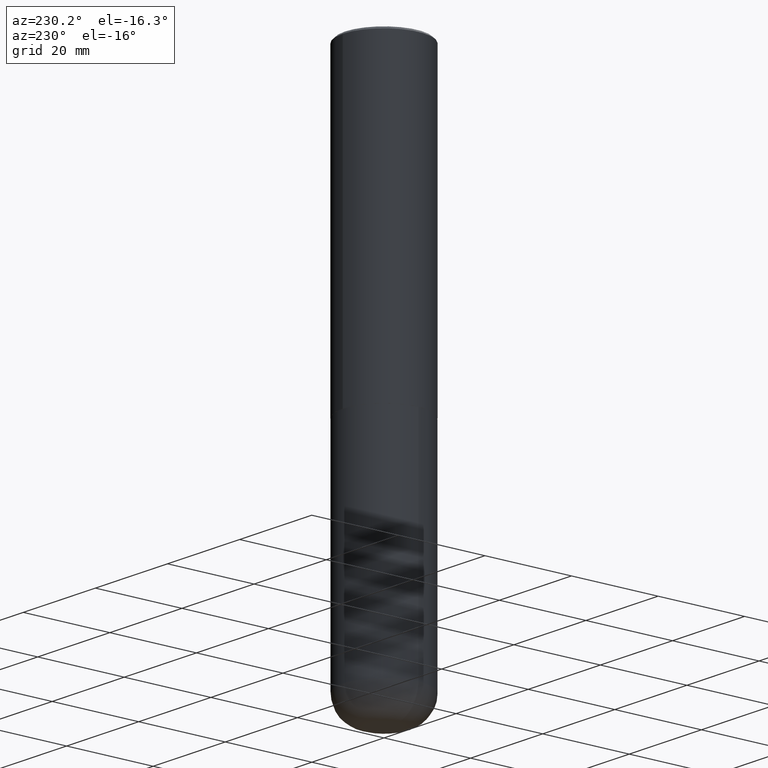
[diagram: clean part render]
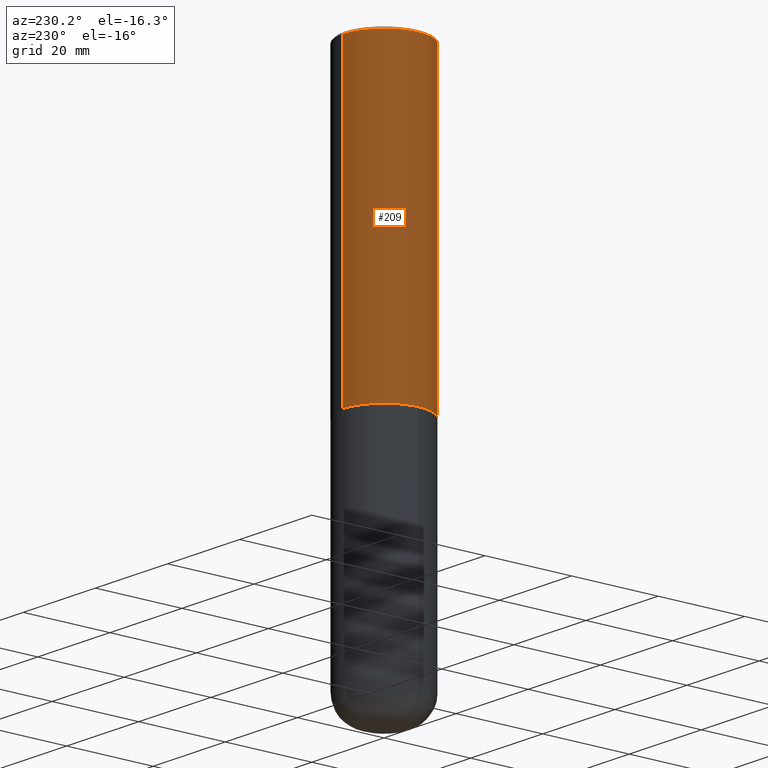
[diagram: same view with one face highlighted and labeled with its STEP entity id]
A machine part, auxiliary view. The second image highlights one B-rep face of the part: STEP entity #209.
In plain terms, the highlighted cylindrical surface (partial cylindrical patch) has radius 9.525 mm, axis along (-0, 0, 1).
Its self-contained STEP definition (entity closure, byte-faithful):
#33 = LINE ( 'NONE', #178, #373 ) ;
#40 = EDGE_LOOP ( 'NONE', ( #100, #313, #407, #204 ) ) ;
#44 = EDGE_CURVE ( 'NONE', #65, #246, #60, .T. ) ;
#60 = LINE ( 'NONE', #135, #207 ) ;
#61 = EDGE_CURVE ( 'NONE', #114, #246, #273, .T. ) ;
#65 = VERTEX_POINT ( 'NONE', #396 ) ;
#69 = FACE_OUTER_BOUND ( 'NONE', #40, .T. ) ;
#73 = AXIS2_PLACEMENT_3D ( 'NONE', #319, #356, #137 ) ;
#81 = EDGE_CURVE ( 'NONE', #301, #114, #33, .T. ) ;
#100 = ORIENTED_EDGE ( 'NONE', *, *, #81, .F. ) ;
#107 = CARTESIAN_POINT ( 'NONE',  ( 0.000000000000000000, 0.000000000000000000, 0.000000000000000000 ) ) ;
#114 = VERTEX_POINT ( 'NONE', #235 ) ;
#135 = CARTESIAN_POINT ( 'NONE',  ( -2.618611004132351594E-15, -0.3750000000000002220, 1.308998548422625521E-15 ) ) ;
#137 = DIRECTION ( 'NONE',  ( -6.982962677686265922E-15, -1.000000000000000000, 3.494488891895536035E-15 ) ) ;
#139 = DIRECTION ( 'NONE',  ( -2.446040391741596606E-29, 3.490662795793665557E-15, 1.000000000000000000 ) ) ;
#144 = CARTESIAN_POINT ( 'NONE',  ( 2.664535259100411196E-15, 0.3749999999999907296, -2.749000000000000998 ) ) ;
#147 = CYLINDRICAL_SURFACE ( 'NONE', #361, 0.3750000000000002220 ) ;
#153 = DIRECTION ( 'NONE',  ( -2.446040391741596606E-29, 3.490662795793665557E-15, 1.000000000000000000 ) ) ;
#178 = CARTESIAN_POINT ( 'NONE',  ( 2.664535259100376880E-15, 0.3750000000000002220, -1.308998548422625521E-15 ) ) ;
#184 = AXIS2_PLACEMENT_3D ( 'NONE', #302, #153, #260 ) ;
#204 = ORIENTED_EDGE ( 'NONE', *, *, #61, .F. ) ;
#207 = VECTOR ( 'NONE', #139, 39.37007874015748143 ) ;
#209 = ADVANCED_FACE ( 'NONE', ( #69 ), #147, .T. ) ;
#212 = CIRCLE ( 'NONE', #184, 0.3750000000000003886 ) ;
#235 = CARTESIAN_POINT ( 'NONE',  ( 2.618611004132350411E-15, 0.3749999999999999445, -0.02000000000000139513 ) ) ;
#246 = VERTEX_POINT ( 'NONE', #253 ) ;
#253 = CARTESIAN_POINT ( 'NONE',  ( -2.572686749164323547E-15, -0.3750000000000001110, -0.01999999999999877570 ) ) ;
#260 = DIRECTION ( 'NONE',  ( -6.982962677686265922E-15, -1.000000000000000000, 2.913971193241877611E-15 ) ) ;
#266 = DIRECTION ( 'NONE',  ( -2.446040391741596606E-29, 3.490662795793665557E-15, 1.000000000000000000 ) ) ;
#273 = CIRCLE ( 'NONE', #73, 0.3750000000000000555 ) ;
#289 = EDGE_CURVE ( 'NONE', #301, #65, #212, .T. ) ;
#293 = DIRECTION ( 'NONE',  ( -2.446040391741596606E-29, 3.490662795793665557E-15, 1.000000000000000000 ) ) ;
#301 = VERTEX_POINT ( 'NONE', #144 ) ;
#302 = CARTESIAN_POINT ( 'NONE',  ( 6.724165036897648492E-29, -9.595832025636787455E-15, -2.749000000000000110 ) ) ;
#313 = ORIENTED_EDGE ( 'NONE', *, *, #289, .T. ) ;
#319 = CARTESIAN_POINT ( 'NONE',  ( 4.892080783483214581E-31, -6.981325591587361238E-17, -0.02000000000000008715 ) ) ;
#356 = DIRECTION ( 'NONE',  ( -2.446040391741596606E-29, 3.490662795793665557E-15, 1.000000000000000000 ) ) ;
#361 = AXIS2_PLACEMENT_3D ( 'NONE', #107, #266, #377 ) ;
#373 = VECTOR ( 'NONE', #293, 39.37007874015748143 ) ;
#377 = DIRECTION ( 'NONE',  ( -6.982962677686266711E-15, -1.000000000000000000, 3.490662795793665951E-15 ) ) ;
#396 = CARTESIAN_POINT ( 'NONE',  ( -2.618611004132284935E-15, -0.3750000000000099920, -2.748999999999999222 ) ) ;
#407 = ORIENTED_EDGE ( 'NONE', *, *, #44, .T. ) ;